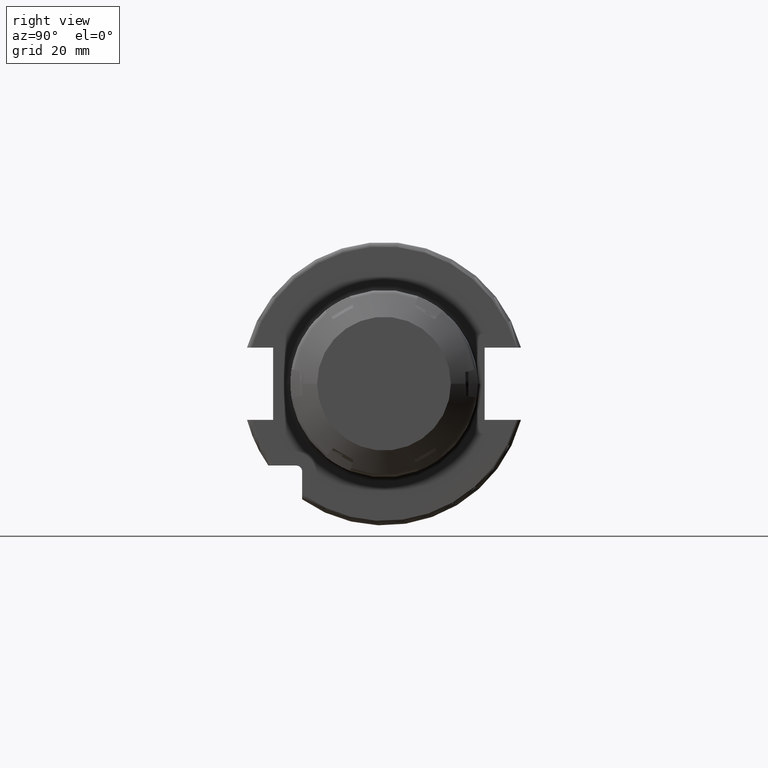
[diagram: clean part render]
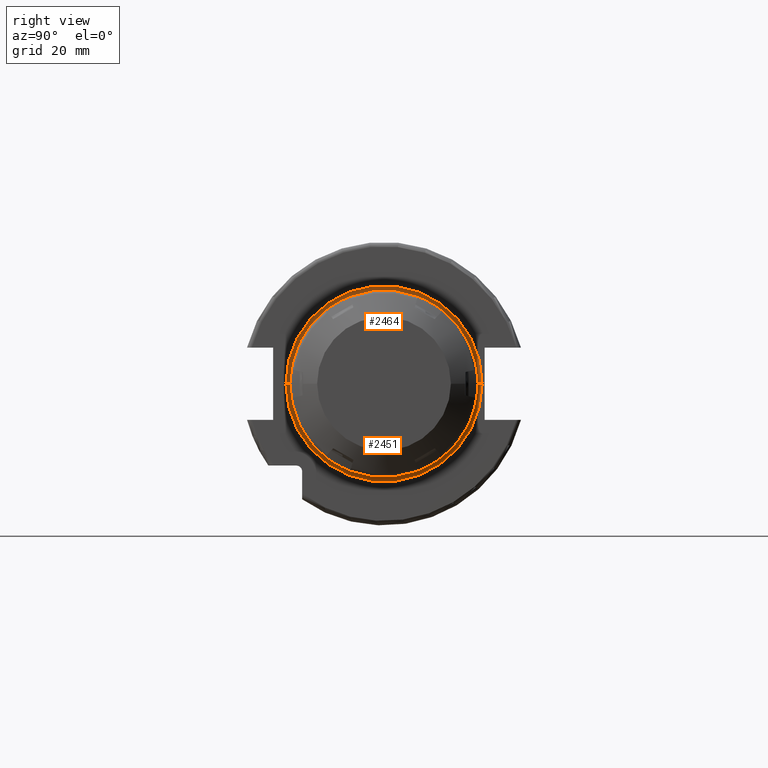
[diagram: same view with one multi-face feature highlighted, each face labeled with its STEP entity id]
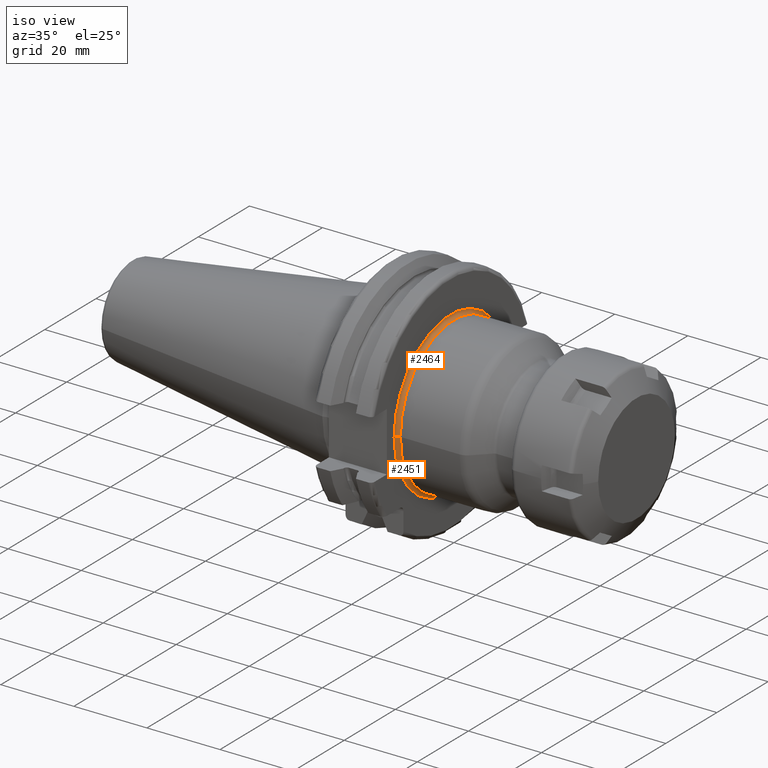
[diagram: same view with one multi-face feature highlighted, each face labeled with its STEP entity id]
A machine part, right view. The highlighted faces form ONE feature: a constant-radius fillet chain: 2 tangent blend faces with common blend radius 1 mm. The faces share edges in the B-rep.
A second angle (iso view) of the same feature is appended — it is thin or edge-on in the first view.
Their STEP definitions:
[1] entity #2464 (Torus):
#163=CARTESIAN_POINT('',(1.905E1,0.E0,0.E0));
#164=DIRECTION('',(1.E0,0.E0,0.E0));
#165=DIRECTION('',(0.E0,1.E0,0.E0));
#166=AXIS2_PLACEMENT_3D('',#163,#164,#165);
#898=CARTESIAN_POINT('',(2.005E1,-2.2E1,5.170863737192E-14));
#899=DIRECTION('',(0.E0,0.E0,-1.E0));
#900=DIRECTION('',(-1.E0,8.881784197001E-14,0.E0));
#901=AXIS2_PLACEMENT_3D('',#898,#899,#900);
#903=CARTESIAN_POINT('',(2.005E1,2.2E1,-5.445643935786E-14));
#904=DIRECTION('',(0.E0,0.E0,1.E0));
#905=DIRECTION('',(-1.E0,-9.592326932761E-14,0.E0));
#906=AXIS2_PLACEMENT_3D('',#903,#904,#905);
#913=CARTESIAN_POINT('',(2.005E1,0.E0,0.E0));
#914=DIRECTION('',(1.E0,0.E0,0.E0));
#915=DIRECTION('',(0.E0,1.E0,0.E0));
#916=AXIS2_PLACEMENT_3D('',#913,#914,#915);
#1483=CARTESIAN_POINT('',(1.905E1,-2.2E1,0.E0));
#1484=CARTESIAN_POINT('',(1.905E1,2.2E1,0.E0));
#1485=VERTEX_POINT('',#1483);
#1486=VERTEX_POINT('',#1484);
#1487=CARTESIAN_POINT('',(2.005E1,-2.1E1,0.E0));
#1488=CARTESIAN_POINT('',(2.005E1,2.1E1,0.E0));
#1489=VERTEX_POINT('',#1487);
#1490=VERTEX_POINT('',#1488);
#2452=CARTESIAN_POINT('',(2.005E1,0.E0,0.E0));
#2453=DIRECTION('',(1.E0,0.E0,0.E0));
#2454=DIRECTION('',(0.E0,9.999731921857E-1,-7.322220282677E-3));
#2455=AXIS2_PLACEMENT_3D('',#2452,#2453,#2454);
#2456=TOROIDAL_SURFACE('',#2455,2.2E1,1.E0);
#2457=ORIENTED_EDGE('',*,*,#1732,.F.);
#2458=ORIENTED_EDGE('',*,*,#2447,.T.);
#2460=ORIENTED_EDGE('',*,*,#2459,.T.);
#2461=ORIENTED_EDGE('',*,*,#2443,.F.);
#2462=EDGE_LOOP('',(#2457,#2458,#2460,#2461));
#2463=FACE_OUTER_BOUND('',#2462,.F.);
#2464=ADVANCED_FACE('',(#2463),#2456,.F.);
#167=CIRCLE('',#166,2.2E1);
#902=CIRCLE('',#901,1.E0);
#907=CIRCLE('',#906,1.E0);
#917=CIRCLE('',#916,2.1E1);
#1732=EDGE_CURVE('',#1486,#1485,#167,.T.);
#2443=EDGE_CURVE('',#1485,#1489,#902,.T.);
#2447=EDGE_CURVE('',#1486,#1490,#907,.T.);
#2459=EDGE_CURVE('',#1490,#1489,#917,.T.);
[2] entity #2451 (Torus):
#158=CARTESIAN_POINT('',(1.905E1,0.E0,0.E0));
#159=DIRECTION('',(1.E0,0.E0,0.E0));
#160=DIRECTION('',(0.E0,-1.E0,0.E0));
#161=AXIS2_PLACEMENT_3D('',#158,#159,#160);
#898=CARTESIAN_POINT('',(2.005E1,-2.2E1,5.170863737192E-14));
#899=DIRECTION('',(0.E0,0.E0,-1.E0));
#900=DIRECTION('',(-1.E0,8.881784197001E-14,0.E0));
#901=AXIS2_PLACEMENT_3D('',#898,#899,#900);
#903=CARTESIAN_POINT('',(2.005E1,2.2E1,-5.445643935786E-14));
#904=DIRECTION('',(0.E0,0.E0,1.E0));
#905=DIRECTION('',(-1.E0,-9.592326932761E-14,0.E0));
#906=AXIS2_PLACEMENT_3D('',#903,#904,#905);
#937=CARTESIAN_POINT('',(2.005E1,0.E0,0.E0));
#938=DIRECTION('',(1.E0,0.E0,0.E0));
#939=DIRECTION('',(0.E0,-1.E0,0.E0));
#940=AXIS2_PLACEMENT_3D('',#937,#938,#939);
#1483=CARTESIAN_POINT('',(1.905E1,-2.2E1,0.E0));
#1484=CARTESIAN_POINT('',(1.905E1,2.2E1,0.E0));
#1485=VERTEX_POINT('',#1483);
#1486=VERTEX_POINT('',#1484);
#1487=CARTESIAN_POINT('',(2.005E1,-2.1E1,0.E0));
#1488=CARTESIAN_POINT('',(2.005E1,2.1E1,0.E0));
#1489=VERTEX_POINT('',#1487);
#1490=VERTEX_POINT('',#1488);
#2437=CARTESIAN_POINT('',(2.005E1,0.E0,0.E0));
#2438=DIRECTION('',(1.E0,0.E0,0.E0));
#2439=DIRECTION('',(0.E0,-9.999731921857E-1,7.322220282676E-3));
#2440=AXIS2_PLACEMENT_3D('',#2437,#2438,#2439);
#2441=TOROIDAL_SURFACE('',#2440,2.2E1,1.E0);
#2442=ORIENTED_EDGE('',*,*,#1730,.F.);
#2444=ORIENTED_EDGE('',*,*,#2443,.T.);
#2446=ORIENTED_EDGE('',*,*,#2445,.T.);
#2448=ORIENTED_EDGE('',*,*,#2447,.F.);
#2449=EDGE_LOOP('',(#2442,#2444,#2446,#2448));
#2450=FACE_OUTER_BOUND('',#2449,.F.);
#2451=ADVANCED_FACE('',(#2450),#2441,.F.);
#162=CIRCLE('',#161,2.2E1);
#902=CIRCLE('',#901,1.E0);
#907=CIRCLE('',#906,1.E0);
#941=CIRCLE('',#940,2.1E1);
#1730=EDGE_CURVE('',#1485,#1486,#162,.T.);
#2443=EDGE_CURVE('',#1485,#1489,#902,.T.);
#2445=EDGE_CURVE('',#1489,#1490,#941,.T.);
#2447=EDGE_CURVE('',#1486,#1490,#907,.T.);